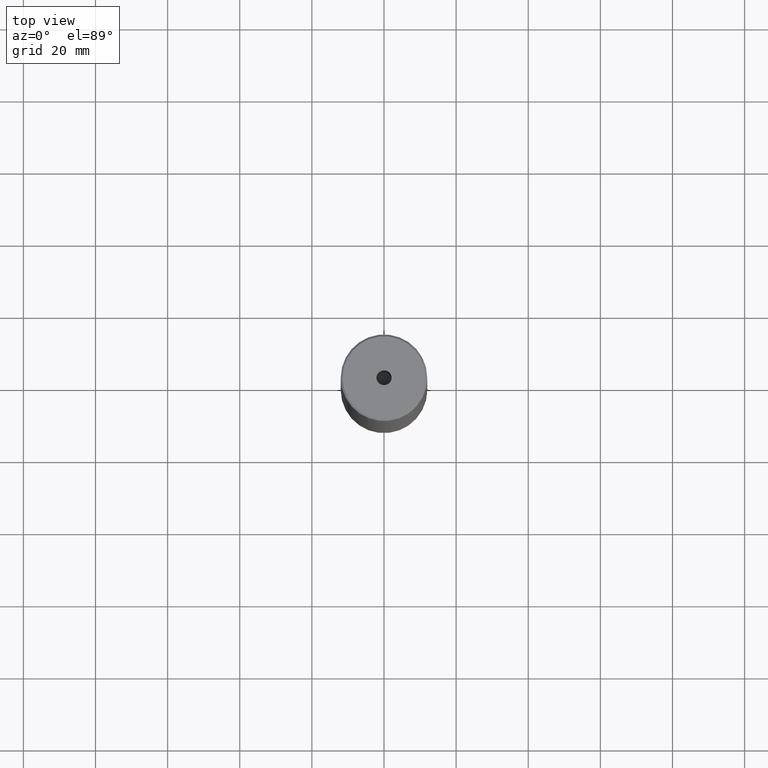
[diagram: clean part render]
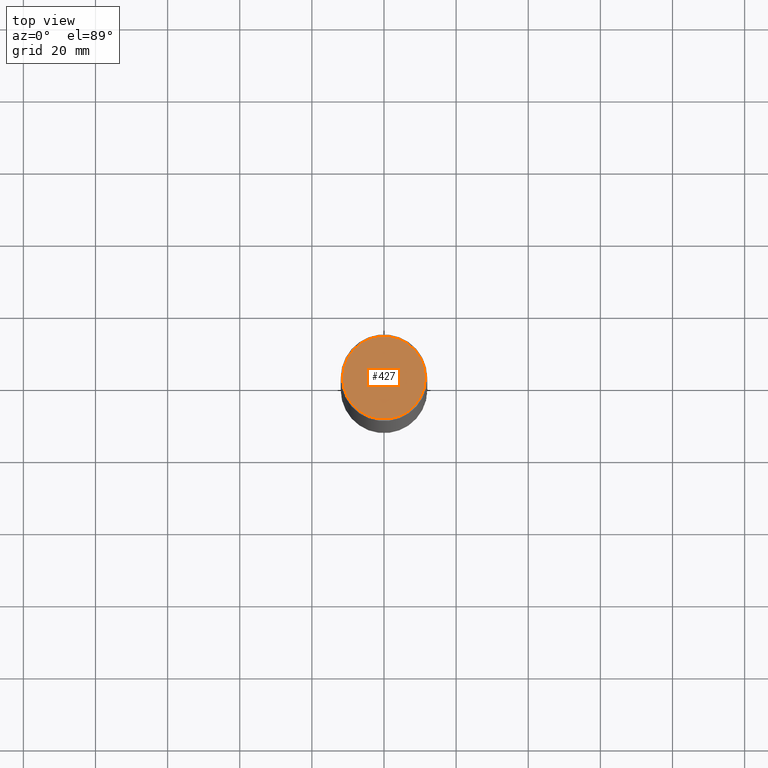
[diagram: same view with one face highlighted and labeled with its STEP entity id]
A machine part, top view. The second image highlights one B-rep face of the part: STEP entity #427.
In plain terms, the highlighted planar face has unit normal (0, -0, 1).
Its self-contained STEP definition (entity closure, byte-faithful):
#11 = AXIS2_PLACEMENT_3D ( 'NONE', #207, #461, #15 ) ;
#15 = DIRECTION ( 'NONE',  ( 1.000000000000000000, 0.000000000000000000, 0.000000000000000000 ) ) ;
#36 = CARTESIAN_POINT ( 'NONE',  ( -2.099999999999998757, 2.571758278209440478E-16, -1.990051048614449116E-16 ) ) ;
#45 = CARTESIAN_POINT ( 'NONE',  ( 11.49999999999998046, 1.438959988998138780E-15, 0.000000000000000000 ) ) ;
#48 = PLANE ( 'NONE',  #299 ) ;
#64 = EDGE_CURVE ( 'NONE', #231, #373, #311, .T. ) ;
#65 = ORIENTED_EDGE ( 'NONE', *, *, #557, .F. ) ;
#85 = CARTESIAN_POINT ( 'NONE',  ( -11.49999999999998046, 0.000000000000000000, 0.000000000000000000 ) ) ;
#106 = ORIENTED_EDGE ( 'NONE', *, *, #64, .T. ) ;
#111 = ORIENTED_EDGE ( 'NONE', *, *, #280, .T. ) ;
#114 = ORIENTED_EDGE ( 'NONE', *, *, #520, .F. ) ;
#120 = AXIS2_PLACEMENT_3D ( 'NONE', #543, #552, #581 ) ;
#133 = FACE_OUTER_BOUND ( 'NONE', #378, .T. ) ;
#150 = DIRECTION ( 'NONE',  ( -0.000000000000000000, -0.000000000000000000, 1.000000000000000000 ) ) ;
#202 = DIRECTION ( 'NONE',  ( 1.000000000000000000, 0.000000000000000000, 0.000000000000000000 ) ) ;
#207 = CARTESIAN_POINT ( 'NONE',  ( 0.000000000000000000, 0.000000000000000000, -1.990051048614449116E-16 ) ) ;
#212 = VERTEX_POINT ( 'NONE', #514 ) ;
#227 = CARTESIAN_POINT ( 'NONE',  ( 0.000000000000000000, 0.000000000000000000, 0.000000000000000000 ) ) ;
#231 = VERTEX_POINT ( 'NONE', #85 ) ;
#260 = AXIS2_PLACEMENT_3D ( 'NONE', #561, #150, #202 ) ;
#280 = EDGE_CURVE ( 'NONE', #373, #231, #558, .T. ) ;
#299 = AXIS2_PLACEMENT_3D ( 'NONE', #323, #350, #586 ) ;
#311 = CIRCLE ( 'NONE', #400, 11.49999999999998046 ) ;
#316 = DIRECTION ( 'NONE',  ( 1.000000000000000000, 0.000000000000000000, 0.000000000000000000 ) ) ;
#323 = CARTESIAN_POINT ( 'NONE',  ( 0.000000000000000000, 0.000000000000000000, 0.000000000000000000 ) ) ;
#350 = DIRECTION ( 'NONE',  ( 0.000000000000000000, -0.000000000000000000, 1.000000000000000000 ) ) ;
#362 = CIRCLE ( 'NONE', #11, 2.099999999999998757 ) ;
#373 = VERTEX_POINT ( 'NONE', #45 ) ;
#378 = EDGE_LOOP ( 'NONE', ( #106, #111 ) ) ;
#400 = AXIS2_PLACEMENT_3D ( 'NONE', #227, #579, #316 ) ;
#427 = ADVANCED_FACE ( 'NONE', ( #537, #133 ), #48, .T. ) ;
#450 = EDGE_LOOP ( 'NONE', ( #65, #114 ) ) ;
#461 = DIRECTION ( 'NONE',  ( -0.000000000000000000, -0.000000000000000000, 1.000000000000000000 ) ) ;
#465 = VERTEX_POINT ( 'NONE', #36 ) ;
#505 = CIRCLE ( 'NONE', #260, 2.099999999999998757 ) ;
#514 = CARTESIAN_POINT ( 'NONE',  ( 2.099999999999998757, 0.000000000000000000, -1.990051048614449116E-16 ) ) ;
#520 = EDGE_CURVE ( 'NONE', #465, #212, #505, .T. ) ;
#537 = FACE_BOUND ( 'NONE', #450, .T. ) ;
#543 = CARTESIAN_POINT ( 'NONE',  ( 0.000000000000000000, 0.000000000000000000, 0.000000000000000000 ) ) ;
#552 = DIRECTION ( 'NONE',  ( -0.000000000000000000, -0.000000000000000000, 1.000000000000000000 ) ) ;
#557 = EDGE_CURVE ( 'NONE', #212, #465, #362, .T. ) ;
#558 = CIRCLE ( 'NONE', #120, 11.49999999999998046 ) ;
#561 = CARTESIAN_POINT ( 'NONE',  ( 0.000000000000000000, 0.000000000000000000, -1.990051048614449116E-16 ) ) ;
#579 = DIRECTION ( 'NONE',  ( -0.000000000000000000, -0.000000000000000000, 1.000000000000000000 ) ) ;
#581 = DIRECTION ( 'NONE',  ( 1.000000000000000000, 0.000000000000000000, 0.000000000000000000 ) ) ;
#586 = DIRECTION ( 'NONE',  ( 1.000000000000000000, 0.000000000000000000, 0.000000000000000000 ) ) ;